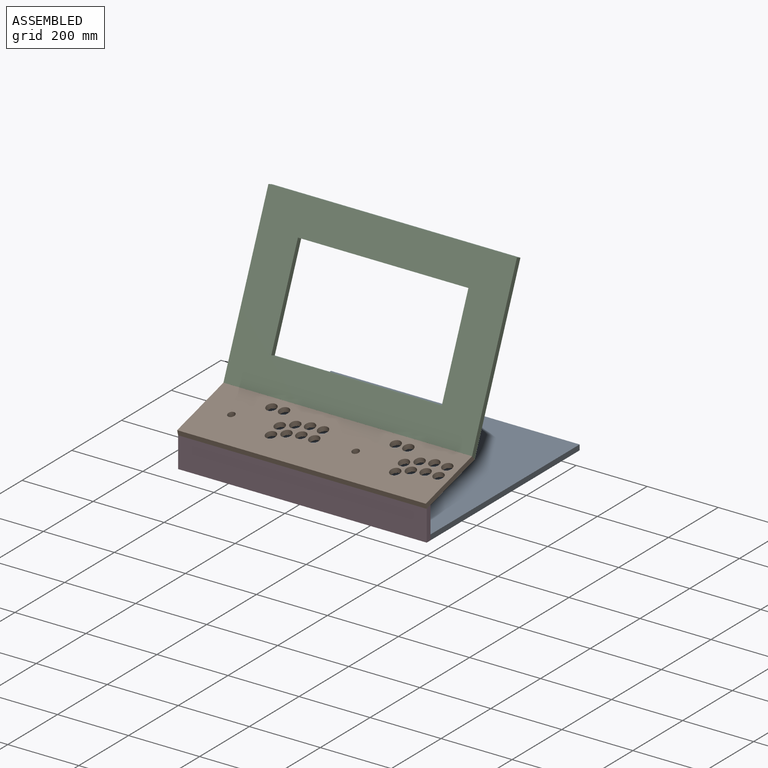
[diagram: assembled view]
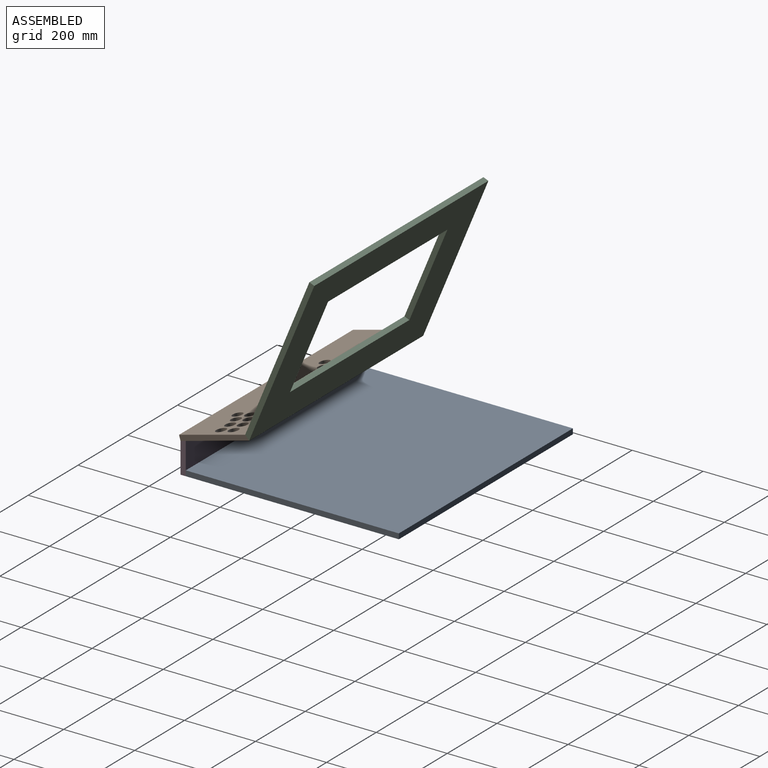
[diagram: assembled view, second angle]
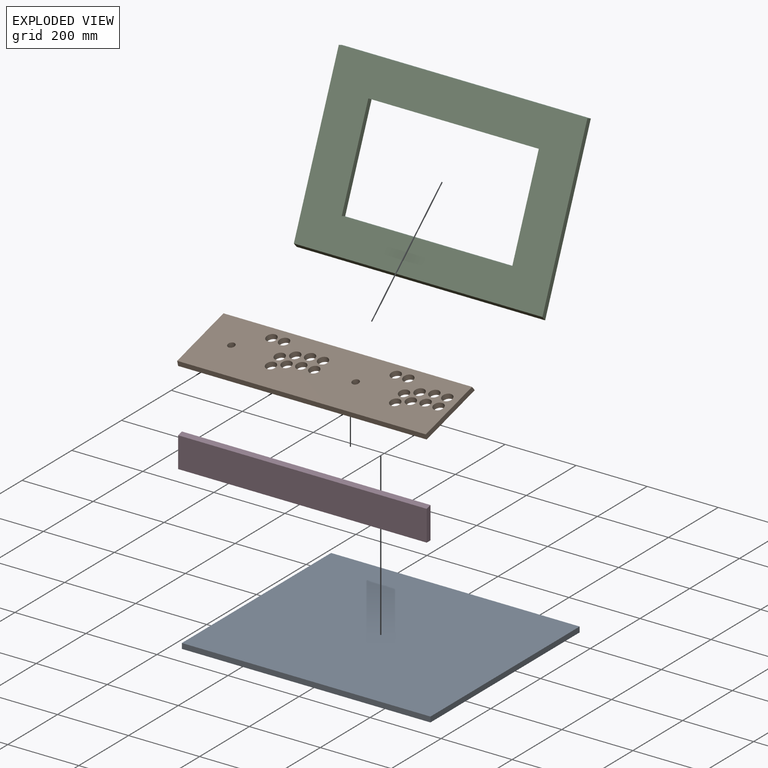
[diagram: exploded view]
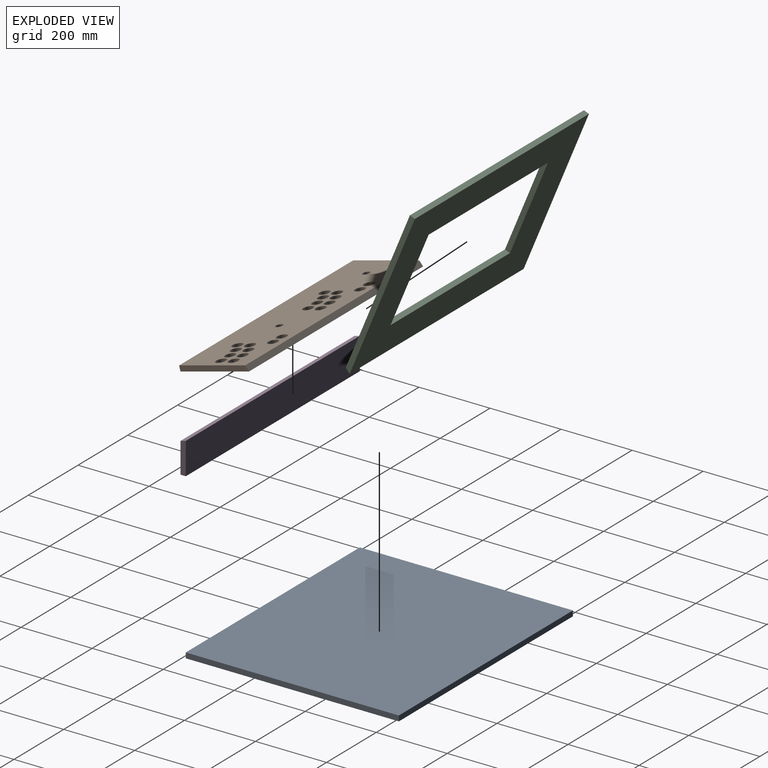
[diagram: exploded view, second angle]
ASSEMBLY  parts=4 mates=3
PART A: 6 faces, bbox 700x600x15 mm
  f0: plane 600x15mm, normal (1,0,0), area 9000mm2, adj f1,f3,f4,f5
  f1: plane 700x15mm, normal (0,1,0), area 10500mm2, adj f0,f2,f4,f5
  f2: plane 600x15mm, normal (-1,0,0), area 9000mm2, adj f1,f3,f4,f5
  f3: plane 700x15mm, normal (0,-1,0), area 10500mm2, adj f0,f2,f4,f5
  f4: plane 700x600mm, normal (0,0,1), area 420000mm2, adj f0,f1,f2,f3
  f5: plane 700x600mm, normal (0,0,-1), area 420000mm2, adj f0,f1,f2,f3
PART B: 28 faces, bbox 700x200x15 mm
  f0: plane 200x15mm, normal (1,0,0), area 2945.1mm2, adj f2,f3,f4,f27
  f1: plane 200x15mm, normal (-1,0,0), area 2945.1mm2, adj f2,f3,f4,f27
  f2: plane 700x15mm, normal (0,-1,0), area 10500mm2, adj f0,f1,f3,f4
  f3: plane 700x192.68mm, normal (0,0,1), area 121040.1mm2, adj f0,f1,f2,f5,f6,f7,f8,f9
  f4: plane 700x200mm, normal (0,0,-1), area 126161.3mm2, adj f0,f1,f2,f5,f6,f7,f8,f9
  f5: cylinder r=14.5mm len=29mm, axis (0,0,1), area 1366.6mm2, adj f3,f4
  f6: cylinder r=14.5mm len=29mm, axis (0,0,1), area 1366.6mm2, adj f3,f4
  f7: cylinder r=10mm len=20mm, axis (0,0,1), area 942.5mm2, adj f3,f4
  f8: cylinder r=14.5mm len=29mm, axis (0,0,1), area 1366.6mm2, adj f3,f4
  f9: cylinder r=14.5mm len=29mm, axis (0,0,1), area 1366.6mm2, adj f3,f4
  f10: cylinder r=14.5mm len=29mm, axis (0,0,1), area 1366.6mm2, adj f3,f4
  f11: cylinder r=14.5mm len=29mm, axis (0,0,1), area 1366.6mm2, adj f3,f4
  f12: cylinder r=14.5mm len=29mm, axis (0,0,1), area 1366.6mm2, adj f3,f4
  f13: cylinder r=14.5mm len=29mm, axis (0,0,1), area 1366.6mm2, adj f3,f4
  f14: cylinder r=14.5mm len=29mm, axis (0,0,1), area 1366.6mm2, adj f3,f4
  f15: cylinder r=14.5mm len=29mm, axis (0,0,1), area 1366.6mm2, adj f3,f4
  f16: cylinder r=14.5mm len=29mm, axis (0,0,1), area 1366.6mm2, adj f3,f4
  f17: cylinder r=14.5mm len=29mm, axis (0,0,1), area 1366.6mm2, adj f3,f4
  f18: cylinder r=14.5mm len=29mm, axis (0,0,1), area 1366.6mm2, adj f3,f4
  f19: cylinder r=14.5mm len=29mm, axis (0,0,1), area 1366.6mm2, adj f3,f4
  f20: cylinder r=14.5mm len=29mm, axis (0,0,1), area 1366.6mm2, adj f3,f4
  f21: cylinder r=14.5mm len=29mm, axis (0,0,1), area 1366.6mm2, adj f3,f4
  f22: cylinder r=14.5mm len=29mm, axis (0,0,1), area 1366.6mm2, adj f3,f4
  f23: cylinder r=14.5mm len=29mm, axis (0,0,1), area 1366.6mm2, adj f3,f4
  f24: cylinder r=14.5mm len=29mm, axis (0,0,1), area 1366.6mm2, adj f3,f4
  f25: cylinder r=14.5mm len=29mm, axis (0,0,1), area 1366.6mm2, adj f3,f4
  f26: cylinder r=10mm len=20mm, axis (0,0,1), area 942.5mm2, adj f3,f4
  f27: plane 700x15mm, normal (0,0.9,0.44), area 11682.3mm2, adj f0,f1,f3,f4
PART C: 10 faces, bbox 700x480x15 mm
  f0: plane 700x472.52mm, normal (0,0,1), area 196364.9mm2, adj f2,f3,f4,f5,f6,f7,f8,f9
  f1: plane 700x480mm, normal (0,0,-1), area 201600mm2, adj f2,f3,f4,f5,f6,f7,f8,f9
  f2: plane 480x15mm, normal (1,0,0), area 7143.9mm2, adj f0,f1,f3,f5
  f3: plane 700x15mm, normal (0,1,0), area 10500mm2, adj f0,f1,f2,f4
  f4: plane 480x15mm, normal (-1,0,0), area 7143.9mm2, adj f0,f1,f3,f5
  f5: plane 700x15mm, normal (0,-0.89,0.45), area 11732.7mm2, adj f0,f1,f2,f4
  f6: plane 280x15mm, normal (-1,0,0), area 4200mm2, adj f0,f1,f7,f9
  f7: plane 480x15mm, normal (0,-1,0), area 7200mm2, adj f0,f1,f6,f8
  f8: plane 280x15mm, normal (1,0,0), area 4200mm2, adj f0,f1,f7,f9
  f9: plane 480x15mm, normal (0,1,0), area 7200mm2, adj f0,f1,f6,f8
PART D: 6 faces, bbox 700x15x90 mm
  f0: plane 90x15mm, normal (1,0,0), area 1319.9mm2, adj f2,f3,f4,f5
  f1: plane 90x15mm, normal (-1,0,0), area 1319.9mm2, adj f2,f3,f4,f5
  f2: plane 700x85.98mm, normal (0,-1,0), area 60186.5mm2, adj f0,f1,f4,f5
  f3: plane 700x90mm, normal (0,1,0), area 63000mm2, adj f0,f1,f4,f5
  f4: plane 700x15mm, normal (0,0,-1), area 10500mm2, adj f0,f1,f2,f3
  f5: plane 700x15mm, normal (0,-0.26,0.97), area 10870.4mm2, adj f0,f1,f2,f3
PLACE A t=(0,328.78,0.65)mm
PLACE B rot(axis=(1,0,0),15deg) t=(0,110.37,112.51)mm
PLACE C rot(axis=(1,0,0),67.5deg) t=(0,298.83,360.1)mm
PLACE D t=(0,21.28,0.65)mm
MATE fastened B.f4 <-> D.f5  axis (0,0.26,-0.97) through (0,13.78,86.63)mm
MATE fastened A.f5 <-> D.f4  axis (0,0,-1) through (0,28.78,0.65)mm
MATE fastened C.f5 <-> B.f27  axis (0,-0.75,-0.66) through (0,201.49,144.69)mm
